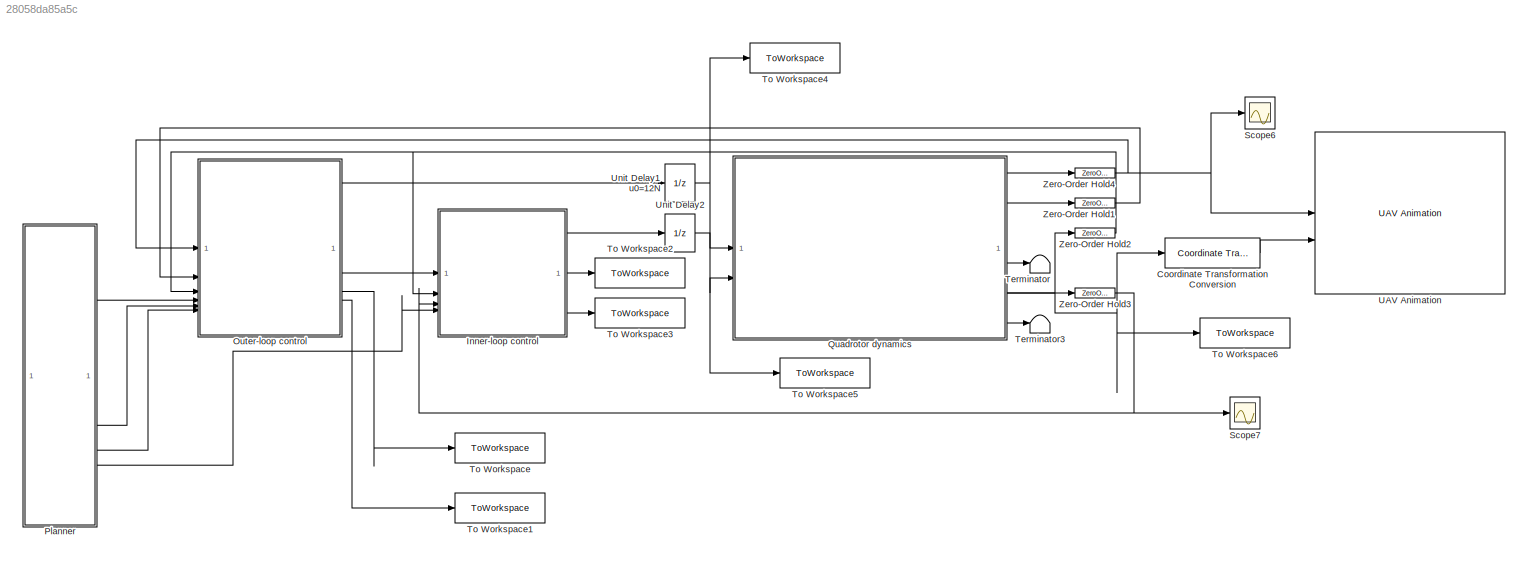
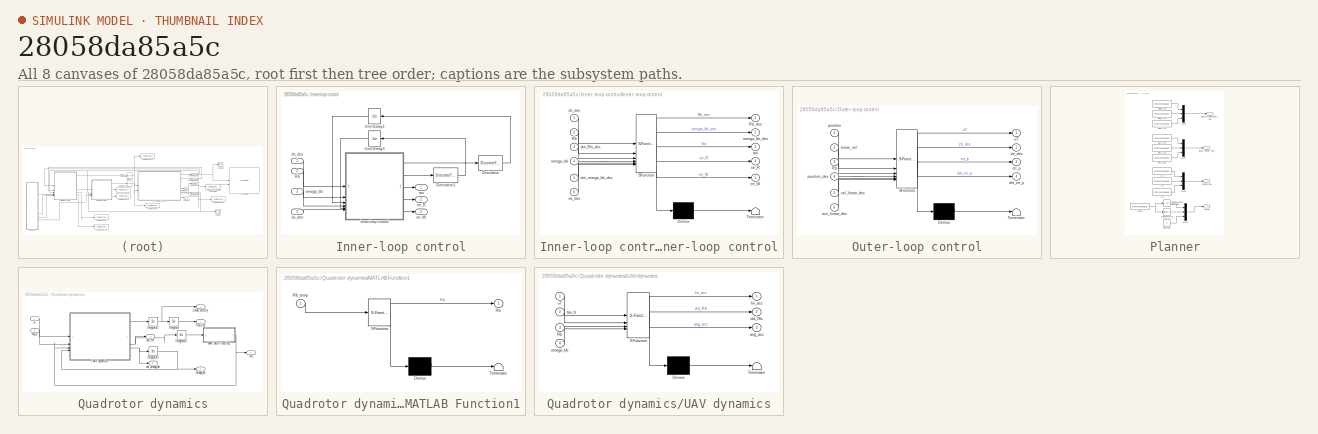
[diagram: thumbnail index - all 8 canvases of the model, root first then tree order]
MODEL slx_28058da85a5c
KIND model
CONFIG AbsTol = auto
CONFIG EnableMultiTasking = off
CONFIG FixedStep = auto
CONFIG InitFcn = %% INITIALIZATION\n\n%% UAV PARAMETERS\n\nmass = 1.2;\nIb = diag([1.2416 1.2416 2*1.2416]); \n\n%% SAMPLING TIME\nTs=0.001;\n\n%% PLANNER\nt_iniz = 0;\nttot=20; %duration\ntdead=10; %dead time to evaluate the steady-state\ntot_time = ttot + tdead;\nt1=linspace(0,ttot,round(ttot/Ts));\nt=linspace(0,ttot+tdead,round(ttot/Ts)+round(tdead/Ts));\np= zeros(4,length(t1)); dot_p= zeros(4,length(t1)); ddot_p= zeros(4,lengt...<+2649ch>
CONFIG MaxStep = auto
CONFIG MinStep = auto
CONFIG RelTol = 1e-3
CONFIG SampleTimeConstraint = Unconstrained
CONFIG SolverName = VariableStepAuto
CONFIG StartTime = 0.0
CONFIG StopTime = 30.0
BLOCK [Reference] Coordinate Transformation Conversion  REF=robotcorelib/Coordinate Transformation Conversion
  SourceBlock = robotcorelib/Coordinate Transformation Conversion
  SourceType = robotics.slcore.internal.block.CoordinateTransformationConversion
BLOCK [SubSystem] Inner-loop control
BLOCK [DiscreteTransferFcn] Inner-loop control/Derivation
  Denominator = [Ts 0]
  InitialStates = [1 0 0;0 1 0;0 0 1]
  InputPortMap = u0
  Numerator = [1 -1]
  SampleTime = Ts
BLOCK [DiscreteTransferFcn] Inner-loop control/Derivation1
  Denominator = [Ts 0]
  InitialStates = [0 0 0]
  InputPortMap = u0
  Numerator = [1 -1]
  SampleTime = Ts
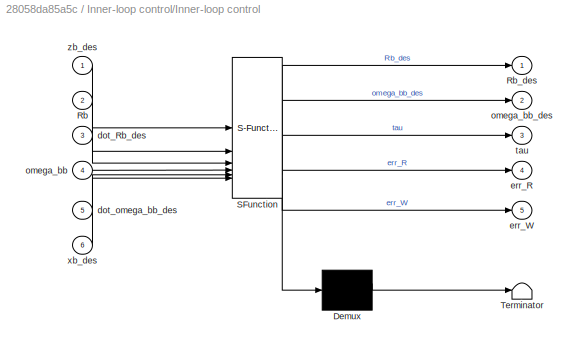
BLOCK [SubSystem] Inner-loop control/Inner-loop control
  ErrorFcn = Stateflow.Translate.translate
  PermitHierarchicalResolution = ExplicitOnly
  SFBlockType = MATLAB Function
  TreatAsAtomicUnit = on
BLOCK [Demux] Inner-loop control/Inner-loop control/ Demux 
  Outputs = 1
BLOCK [S-Function] Inner-loop control/Inner-loop control/ SFunction 
  EnableBusSupport = on
  FunctionName = sf_sfun
  Parameters = Ib
  PortCounts = [6 6]
  SFcnIsStateOwnerBlock = off
  SFunctionDeploymentMode = off
  Tag = Stateflow S-Function 4
BLOCK [Terminator] Inner-loop control/Inner-loop control/ Terminator 
BLOCK [Inport] Inner-loop control/Inner-loop control/Rb
  Port = 2
BLOCK [Outport] Inner-loop control/Inner-loop control/Rb_des
BLOCK [Inport] Inner-loop control/Inner-loop control/dot_Rb_des
  Port = 3
BLOCK [Inport] Inner-loop control/Inner-loop control/dot_omega_bb_des
  Port = 5
BLOCK [Outport] Inner-loop control/Inner-loop control/err_R
  Port = 4
BLOCK [Outport] Inner-loop control/Inner-loop control/err_W
  Port = 5
BLOCK [Inport] Inner-loop control/Inner-loop control/omega_bb
  Port = 4
BLOCK [Outport] Inner-loop control/Inner-loop control/omega_bb_des
  Port = 2
BLOCK [Outport] Inner-loop control/Inner-loop control/tau
  Port = 3
BLOCK [Inport] Inner-loop control/Inner-loop control/xb_des
  Port = 6
BLOCK [Inport] Inner-loop control/Inner-loop control/zb_des
BLOCK [Inport] Inner-loop control/Rb
  Port = 2
BLOCK [UnitDelay] Inner-loop control/Unit Delay1
  InitialCondition = eye(3)
  SampleTime = Ts
BLOCK [UnitDelay] Inner-loop control/Unit Delay3
  InitialCondition = [0 0 0]
  SampleTime = Ts
BLOCK [Outport] Inner-loop control/err_R
  Port = 2
BLOCK [Outport] Inner-loop control/err_W
  Port = 3
BLOCK [Inport] Inner-loop control/omega_bb
  Port = 3
BLOCK [Outport] Inner-loop control/tau
BLOCK [Inport] Inner-loop control/xb_des
  Port = 4
BLOCK [Inport] Inner-loop control/zb_des
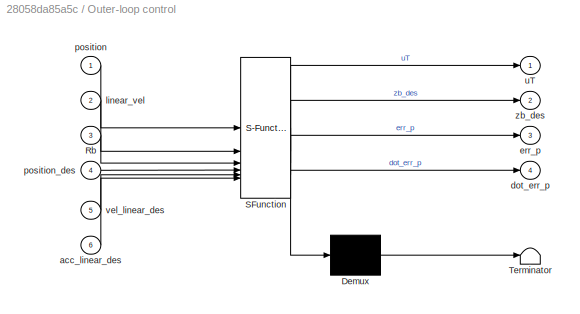
BLOCK [SubSystem] Outer-loop control
  ErrorFcn = Stateflow.Translate.translate
  PermitHierarchicalResolution = ExplicitOnly
  SFBlockType = MATLAB Function
  TreatAsAtomicUnit = on
BLOCK [Demux] Outer-loop control/ Demux 
  Outputs = 1
BLOCK [S-Function] Outer-loop control/ SFunction 
  EnableBusSupport = on
  FunctionName = sf_sfun
  Parameters = mass
  PortCounts = [6 5]
  SFcnIsStateOwnerBlock = off
  SFunctionDeploymentMode = off
  Tag = Stateflow S-Function 3
BLOCK [Terminator] Outer-loop control/ Terminator 
BLOCK [Inport] Outer-loop control/Rb
  Port = 3
BLOCK [Inport] Outer-loop control/acc_linear_des
  Port = 6
BLOCK [Outport] Outer-loop control/dot_err_p
  Port = 4
BLOCK [Outport] Outer-loop control/err_p
  Port = 3
BLOCK [Inport] Outer-loop control/linear_vel
  Port = 2
BLOCK [Inport] Outer-loop control/position
BLOCK [Inport] Outer-loop control/position_des
  Port = 4
BLOCK [Outport] Outer-loop control/uT
BLOCK [Inport] Outer-loop control/vel_linear_des
  Port = 5
BLOCK [Outport] Outer-loop control/zb_des
  Port = 2
BLOCK [SubSystem] Planner
BLOCK [Constant] Planner/Constant
  Value = 0
BLOCK [Mux] Planner/Mux1
  DisplayOption = bar
  Inputs = 3
BLOCK [Mux] Planner/Mux2
  DisplayOption = bar
  Inputs = 3
BLOCK [Mux] Planner/Mux3
  DisplayOption = bar
  Inputs = 3
BLOCK [Mux] Planner/Mux4
  DisplayOption = bar
  Inputs = 3
BLOCK [Trigonometry] Planner/Trigonometric Function
BLOCK [Trigonometry] Planner/Trigonometric Function1
  Operator = cos
BLOCK [FromWorkspace] Planner/ddot_x_d
  SampleTime = Ts
  VariableName = [t' ddot_csi_d(1,:)']
BLOCK [FromWorkspace] Planner/ddot_y_d
  SampleTime = Ts
  VariableName = [t' ddot_csi_d(2,:)']
BLOCK [FromWorkspace] Planner/ddot_z_d
  SampleTime = Ts
  VariableName = [t' ddot_csi_d(3,:)']
BLOCK [FromWorkspace] Planner/dot_x_d1
  SampleTime = Ts
  VariableName = [t' dot_csi_d(1,:)']
BLOCK [FromWorkspace] Planner/dot_y_d1
  SampleTime = Ts
  VariableName = [t' dot_csi_d(2,:)']
BLOCK [FromWorkspace] Planner/dot_z_d1
  SampleTime = Ts
  VariableName = [t' dot_csi_d(3,:)']
BLOCK [Outport] Planner/linear_acceleration_des
  Port = 3
BLOCK [Outport] Planner/linear_velocity_des
  Port = 2
BLOCK [Outport] Planner/position_des
BLOCK [FromWorkspace] Planner/psi_d1
  SampleTime = Ts
  VariableName = [t' psi_d']
BLOCK [FromWorkspace] Planner/x_d
  SampleTime = Ts
  VariableName = [t' csi_d(1,:)']
BLOCK [Outport] Planner/xb_des
  Port = 4
BLOCK [FromWorkspace] Planner/y_d
  SampleTime = Ts
  VariableName = [t' csi_d(2,:)']
BLOCK [FromWorkspace] Planner/z_d
  SampleTime = Ts
  VariableName = [t' csi_d(3,:)']
BLOCK [SubSystem] Quadrotor dynamics
BLOCK [Integrator] Quadrotor dynamics/Integrator
  InitialCondition = pos_0
BLOCK [Integrator] Quadrotor dynamics/Integrator1
  InitialCondition = lin_vel_0
BLOCK [Integrator] Quadrotor dynamics/Integrator2
  InitialCondition = [1 0 0; 0 1 0;0 0 1]
BLOCK [Integrator] Quadrotor dynamics/Integrator3
  InitialCondition = w_bb_0
BLOCK [Outport] Quadrotor dynamics/Linear_velocity
  Port = 2
BLOCK [SubSystem] Quadrotor dynamics/MATLAB Function1
  ErrorFcn = Stateflow.Translate.translate
  PermitHierarchicalResolution = ExplicitOnly
  SFBlockType = MATLAB Function
  TreatAsAtomicUnit = on
BLOCK [Demux] Quadrotor dynamics/MATLAB Function1/ Demux 
  Outputs = 1
BLOCK [S-Function] Quadrotor dynamics/MATLAB Function1/ SFunction 
  EnableBusSupport = on
  FunctionName = sf_sfun
  PortCounts = [1 2]
  SFcnIsStateOwnerBlock = off
  SFunctionDeploymentMode = off
  Tag = Stateflow S-Function 5
BLOCK [Terminator] Quadrotor dynamics/MATLAB Function1/ Terminator 
BLOCK [Outport] Quadrotor dynamics/MATLAB Function1/Rb
BLOCK [Inport] Quadrotor dynamics/MATLAB Function1/Rb_temp
BLOCK [Outport] Quadrotor dynamics/Position
BLOCK [Outport] Quadrotor dynamics/Rb
  Port = 3
BLOCK [SubSystem] Quadrotor dynamics/UAV dynamics
  ErrorFcn = Stateflow.Translate.translate
  PermitHierarchicalResolution = ExplicitOnly
  SFBlockType = MATLAB Function
  TreatAsAtomicUnit = on
BLOCK [Demux] Quadrotor dynamics/UAV dynamics/ Demux 
  Outputs = 1
BLOCK [S-Function] Quadrotor dynamics/UAV dynamics/ SFunction 
  EnableBusSupport = on
  FunctionName = sf_sfun
  Parameters = Ib,mass
  PortCounts = [4 4]
  SFcnIsStateOwnerBlock = off
  SFunctionDeploymentMode = off
  Tag = Stateflow S-Function 2
BLOCK [Terminator] Quadrotor dynamics/UAV dynamics/ Terminator 
BLOCK [Inport] Quadrotor dynamics/UAV dynamics/Rb
  Port = 3
BLOCK [Outport] Quadrotor dynamics/UAV dynamics/ang_acc
  Port = 3
BLOCK [Outport] Quadrotor dynamics/UAV dynamics/dot_Rb
  Port = 2
BLOCK [Outport] Quadrotor dynamics/UAV dynamics/lin_acc
BLOCK [Inport] Quadrotor dynamics/UAV dynamics/omega_bb
  Port = 4
BLOCK [Inport] Quadrotor dynamics/UAV dynamics/tau_b
  Port = 2
BLOCK [Inport] Quadrotor dynamics/UAV dynamics/uT
BLOCK [Outport] Quadrotor dynamics/dot_Rb
  Port = 4
BLOCK [Outport] Quadrotor dynamics/dot_omega_bb
  Port = 6
BLOCK [Outport] Quadrotor dynamics/omega_bb
  Port = 5
BLOCK [Inport] Quadrotor dynamics/tau_b
  Port = 2
BLOCK [Inport] Quadrotor dynamics/uT
BLOCK [Scope] Scope6
  Floating = off
  NumInputPorts = 1
  ScopeSpecificationString = Simulink.scopes.TimeScopeBlockCfg('CurrentConfiguration', extmgr.ConfigurationSet(extmgr.Configuration('Core','General UI',true),extmgr.Configuration('Core','Source UI',true),extmgr.Configuration('Sources','WiredSimulink',true,'DataLoggingVariableName','ScopeData1'),extmgr.Configuration('Visuals','Time Domain',true,'SerializedDisplays',{struct('MinYLimReal','-4.625','MaxYLimReal','1.625','YLabelRe...<+1528ch>
BLOCK [Scope] Scope7
  Floating = off
  NumInputPorts = 1
  ScopeSpecificationString = Simulink.scopes.TimeScopeBlockCfg('CurrentConfiguration', extmgr.ConfigurationSet(extmgr.Configuration('Core','General UI',true),extmgr.Configuration('Core','Source UI',true),extmgr.Configuration('Sources','WiredSimulink',true,'DataLoggingVariableName','ScopeData2'),extmgr.Configuration('Visuals','Time Domain',true,'SerializedDisplays',{struct('MinYLimReal','-0.00555','MaxYLimReal','0.04304','YLab...<+1540ch>
BLOCK [Terminator] Terminator
BLOCK [Terminator] Terminator3
BLOCK [ToWorkspace] To Workspace
  FixptAsFi = on
  MaxDataPoints = inf
  SampleTime = -1
  SaveFormat = Timeseries
  VariableName = err_p
BLOCK [ToWorkspace] To Workspace1
  FixptAsFi = on
  MaxDataPoints = inf
  SampleTime = -1
  SaveFormat = Timeseries
  VariableName = dot_err_p
BLOCK [ToWorkspace] To Workspace2
  FixptAsFi = on
  MaxDataPoints = inf
  SampleTime = -1
  SaveFormat = Timeseries
  VariableName = err_R
BLOCK [ToWorkspace] To Workspace3
  FixptAsFi = on
  MaxDataPoints = inf
  SampleTime = -1
  SaveFormat = Timeseries
  VariableName = err_W
BLOCK [ToWorkspace] To Workspace4
  FixptAsFi = on
  MaxDataPoints = inf
  SampleTime = -1
  SaveFormat = Timeseries
  VariableName = uT
BLOCK [ToWorkspace] To Workspace5
  FixptAsFi = on
  MaxDataPoints = inf
  SampleTime = -1
  SaveFormat = Timeseries
  VariableName = tau_b
BLOCK [ToWorkspace] To Workspace6
  FixptAsFi = on
  MaxDataPoints = inf
  SampleTime = -1
  SaveFormat = Timeseries
  VariableName = Rb
BLOCK [Reference] UAV Animation  REF=uavutilslib/UAV Animation
  SourceBlock = uavutilslib/UAV Animation
  SourceType = uav.sluav.internal.system.UAVAnimation
BLOCK [UnitDelay] Unit Delay1 u0=12N
  InitialCondition = 12
  SampleTime = Ts
BLOCK [UnitDelay] Unit Delay2
  InitialCondition = [0 0 0]
  SampleTime = Ts
BLOCK [ZeroOrderHold] Zero-Order Hold1
  SampleTime = Ts
BLOCK [ZeroOrderHold] Zero-Order Hold2
  SampleTime = Ts
BLOCK [ZeroOrderHold] Zero-Order Hold3
  SampleTime = Ts
BLOCK [ZeroOrderHold] Zero-Order Hold4
  SampleTime = Ts
LINE Coordinate Transformation Conversion:1 -> UAV Animation:2
LINE Inner-loop control/Derivation1:1 -> Inner-loop control/Unit Delay3:1
LINE Inner-loop control/Derivation:1 -> Inner-loop control/Unit Delay1:1
LINE Inner-loop control/Inner-loop control:1 -> Inner-loop control/Derivation:1
LINE Inner-loop control/Inner-loop control:2 -> Inner-loop control/Derivation1:1
LINE Inner-loop control/Inner-loop control:3 -> Inner-loop control/tau:1
LINE Inner-loop control/Inner-loop control:4 -> Inner-loop control/err_R:1
LINE Inner-loop control/Inner-loop control:5 -> Inner-loop control/err_W:1
LINE Inner-loop control/Rb:1 -> Inner-loop control/Inner-loop control:2
LINE Inner-loop control/Unit Delay1:1 -> Inner-loop control/Inner-loop control:3
LINE Inner-loop control/Unit Delay3:1 -> Inner-loop control/Inner-loop control:5
LINE Inner-loop control/omega_bb:1 -> Inner-loop control/Inner-loop control:4
LINE Inner-loop control/xb_des:1 -> Inner-loop control/Inner-loop control:6
LINE Inner-loop control/zb_des:1 -> Inner-loop control/Inner-loop control:1
LINE Inner-loop control:1 -> Unit Delay2:1
LINE Inner-loop control:2 -> To Workspace2:1
LINE Inner-loop control:3 -> To Workspace3:1
LINE Outer-loop control:1 -> Unit Delay1 u0=12N:1
LINE Outer-loop control:2 -> Inner-loop control:1
LINE Outer-loop control:3 -> To Workspace:1
LINE Outer-loop control:4 -> To Workspace1:1
LINE Planner/Constant:1 -> Planner/Mux4:3
LINE Planner/Mux1:1 -> Planner/position_des:1
LINE Planner/Mux2:1 -> Planner/linear_acceleration_des:1
LINE Planner/Mux3:1 -> Planner/linear_velocity_des:1
LINE Planner/Mux4:1 -> Planner/xb_des:1
LINE Planner/Trigonometric Function1:1 -> Planner/Mux4:1
LINE Planner/Trigonometric Function:1 -> Planner/Mux4:2
LINE Planner/ddot_x_d:1 -> Planner/Mux2:1
LINE Planner/ddot_y_d:1 -> Planner/Mux2:2
LINE Planner/ddot_z_d:1 -> Planner/Mux2:3
LINE Planner/dot_x_d1:1 -> Planner/Mux3:1
LINE Planner/dot_y_d1:1 -> Planner/Mux3:2
LINE Planner/dot_z_d1:1 -> Planner/Mux3:3
NET Planner/psi_d1:1 -> Planner/Trigonometric Function1:1, Planner/Trigonometric Function:1
LINE Planner/x_d:1 -> Planner/Mux1:1
LINE Planner/y_d:1 -> Planner/Mux1:2
LINE Planner/z_d:1 -> Planner/Mux1:3
LINE Planner:1 -> Outer-loop control:4
LINE Planner:2 -> Outer-loop control:5
LINE Planner:3 -> Outer-loop control:6
LINE Planner:4 -> Inner-loop control:4
NET Quadrotor dynamics/Integrator1:1 -> Quadrotor dynamics/Integrator:1, Quadrotor dynamics/Linear_velocity:1
LINE Quadrotor dynamics/Integrator2:1 -> Quadrotor dynamics/MATLAB Function1:1
NET Quadrotor dynamics/Integrator3:1 -> Quadrotor dynamics/UAV dynamics:4, Quadrotor dynamics/omega_bb:1
LINE Quadrotor dynamics/Integrator:1 -> Quadrotor dynamics/Position:1
NET Quadrotor dynamics/MATLAB Function1:1 -> Quadrotor dynamics/Rb:1, Quadrotor dynamics/UAV dynamics:3
LINE Quadrotor dynamics/UAV dynamics:1 -> Quadrotor dynamics/Integrator1:1
NET Quadrotor dynamics/UAV dynamics:2 -> Quadrotor dynamics/Integrator2:1, Quadrotor dynamics/dot_Rb:1
NET Quadrotor dynamics/UAV dynamics:3 -> Quadrotor dynamics/Integrator3:1, Quadrotor dynamics/dot_omega_bb:1
LINE Quadrotor dynamics/tau_b:1 -> Quadrotor dynamics/UAV dynamics:2
LINE Quadrotor dynamics/uT:1 -> Quadrotor dynamics/UAV dynamics:1
LINE Quadrotor dynamics:1 -> Zero-Order Hold4:1
LINE Quadrotor dynamics:2 -> Zero-Order Hold1:1
NET Quadrotor dynamics:3 -> Coordinate Transformation Conversion:1, To Workspace6:1, Zero-Order Hold2:1
LINE Quadrotor dynamics:4 -> Terminator:1
LINE Quadrotor dynamics:5 -> Zero-Order Hold3:1
LINE Quadrotor dynamics:6 -> Terminator3:1
NET Unit Delay1 u0=12N:1 -> Quadrotor dynamics:1, To Workspace4:1
NET Unit Delay2:1 -> Quadrotor dynamics:2, To Workspace5:1
LINE Zero-Order Hold1:1 -> Outer-loop control:2
NET Zero-Order Hold2:1 -> Inner-loop control:2, Outer-loop control:3
NET Zero-Order Hold3:1 -> Inner-loop control:3, Scope7:1
NET Zero-Order Hold4:1 -> Outer-loop control:1, Scope6:1, UAV Animation:1
note: NET lines group one-source signal fan-out (src -> all destinations, sorted); 1:1 wires keep LINE
CHART Quadrotor dynamics/UAV dynamics states=1 transitions=1
  STATE_LABEL 'eML_blk_kernel()'
  STATE_LABEL "SCRIPT:\nfunction [lin_acc, dot_Rb, ang_acc] = fcn(uT,tau_b,Rb,omega_bb,mass, Ib)\n\nlin_acc = 9.81*[0 0 1]'-(uT/mass)*Rb*[0 0 1]';\ndot_Rb = Rb*skew(omega_bb);\nang_acc = inv(Ib)*(-skew(omega_bb)*Ib*omega_bb + tau_b);\n\nend\n\nfunction S = skew(v)\nif(numel(v)~= 1)\nS= [0 -v(3) v(2); \n    v(3) 0 -v(1);\n    -v(2) v(1) 0];\nelse\nS= zeros(3);\nend\nend"
CHART Outer-loop control states=1 transitions=1
  STATE_LABEL 'eML_blk_kernel()'
  STATE_LABEL "SCRIPT:\nfunction [uT, zb_des, err_p, dot_err_p] = fcn(position, linear_vel, Rb, mass, ...\n    position_des, vel_linear_des, acc_linear_des)\n\ne3=[0 0 1]';\nKp=diag([50,50,400]);\nKv=diag([10,10,50]);\n\nerr_p = position-position_des;\n\ndot_err_p = linear_vel-vel_linear_des;\n\nuT = -(-Kp*err_p -Kv*dot_err_p -mass*9.81*e3 +mass*acc_linear_des)'*Rb*e3;\n\nzb_des= -(-Kp*err_p -Kv*dot_err_p -mass*9.81*e3 +mass*...<+584ch>"
CHART Inner-loop control/Inner-loop control states=1 transitions=1
  STATE_LABEL 'eML_blk_kernel()'
  STATE_LABEL "SCRIPT:\nfunction [Rb_des,omega_bb_des,tau,err_R,err_W] = fcn(zb_des,Rb,dot_Rb_des,omega_bb,dot_omega_bb_des,xb_des,Ib)\n\nyb_des=skew(zb_des)*xb_des/norm(skew(zb_des)*xb_des);\nKr =diag([10,10,1500]);\nKw= diag([10,10,200]);\n\nRb_des = [ skew(yb_des)*zb_des,yb_des,zb_des];\n\nomega_bb_des = wedge(Rb_des'*dot_Rb_des);\n\nerr_R = 0.5*wedge(Rb_des'*Rb-Rb'*Rb_des);\n\nerr_W = omega_bb -Rb'*Rb_des*omega_bb_des;\n\n...<+1017ch>"
CHART Quadrotor dynamics/MATLAB Function1 states=1 transitions=1
  STATE_LABEL 'eML_blk_kernel()'
  STATE_LABEL "SCRIPT:\nfunction Rb = fcn(Rb_temp)\n    [U,S,V] = svd(Rb_temp);\n    sigma = det(U*V');\n    S_ = diag([1 1 sigma]);\n\n    Rb = U*S_*V';\nend\n"
CHART  states=0 transitions=0
CHART  states=0 transitions=0
CHART  states=0 transitions=0
CHART  states=0 transitions=0
